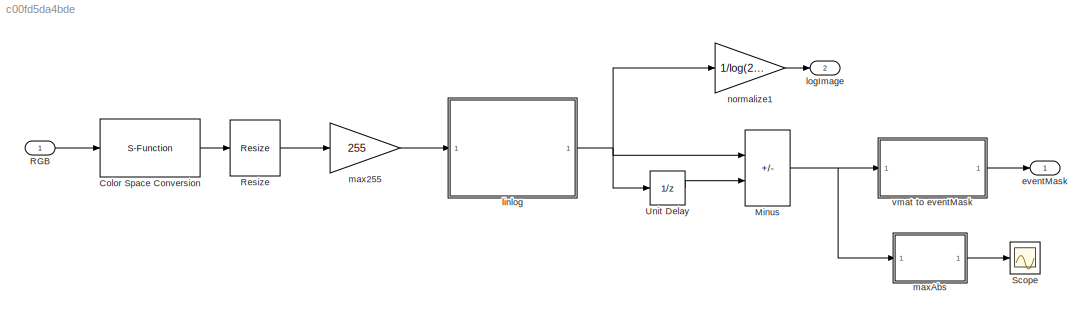
MODEL slx_c00fd5da4bde
KIND model
BLOCK [S-Function] Color Space Conversion
  EnableBusSupport = off
  FunctionName = svipcolorconv
  Parameters = conversionActive, wp, rec, sys, imagePorts, conversion
  Ports = [1, 1]
  SFcnIsStateOwnerBlock = off
  SFunctionDeploymentMode = off
BLOCK [Sum] Minus
  IconShape = rectangular
  Inputs = +-
  Ports = [2, 1]
BLOCK [Inport] RGB
  PortDimensions = [imageHeight,imageWidth,3]
BLOCK [Reference] Resize  REF=visiongeotforms/Resize
  Ports = [1, 1]
  SourceBlock = visiongeotforms/Resize
  SourceProductBaseCode = VP
  SourceType = Resize
BLOCK [Scope] Scope
  Floating = off
  NumInputPorts = 1
  Ports = [1]
  ScopeSpecificationString = Simulink.scopes.TimeScopeBlockCfg('CurrentConfiguration', extmgr.ConfigurationSet(extmgr.Configuration('Core','General UI',true),extmgr.Configuration('Core','Source UI',true),extmgr.Configuration('Sources','WiredSimulink',true),extmgr.Configuration('Visuals','Time Domain',true,'SerializedDisplays',{struct('MinYLimReal','-0.6864','MaxYLimReal','6.17761','YLabelReal','','MinYLimMag','0.00000','MaxYL...<+1356ch>
BLOCK [UnitDelay] Unit Delay
  HasFrameUpgradeWarning = on
  SampleTime = -1
BLOCK [Outport] eventMask
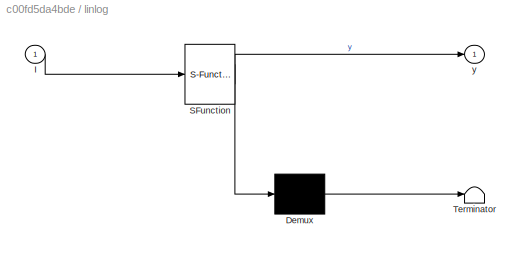
BLOCK [SubSystem] linlog
  ErrorFcn = Stateflow.Translate.translate
  PermitHierarchicalResolution = ExplicitOnly
  Ports = [1, 1]
  RequestExecContextInheritance = off
  SFBlockType = MATLAB Function
  TreatAsAtomicUnit = on
BLOCK [Demux] linlog/ Demux 
  Outputs = 1
  Ports = [1, 1]
BLOCK [S-Function] linlog/ SFunction 
  EnableBusSupport = on
  FunctionName = sf_sfun
  Parameters = threshold
  PortCounts = [1 2]
  Ports = [1, 2]
  SFcnIsStateOwnerBlock = off
  SFunctionDeploymentMode = off
  Tag = Stateflow S-Function 2
BLOCK [Terminator] linlog/ Terminator 
BLOCK [Inport] linlog/I
BLOCK [Outport] linlog/y
BLOCK [Outport] logImage
  Port = 2
BLOCK [Gain] max255
  Gain = 255
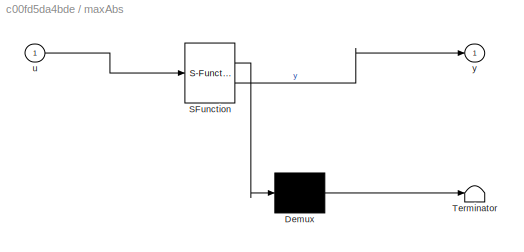
BLOCK [SubSystem] maxAbs
  ErrorFcn = Stateflow.Translate.translate
  PermitHierarchicalResolution = ExplicitOnly
  Ports = [1, 1]
  RequestExecContextInheritance = off
  SFBlockType = MATLAB Function
  TreatAsAtomicUnit = on
BLOCK [Demux] maxAbs/ Demux 
  Outputs = 1
  Ports = [1, 1]
BLOCK [S-Function] maxAbs/ SFunction 
  EnableBusSupport = on
  FunctionName = sf_sfun
  PortCounts = [1 2]
  Ports = [1, 2]
  SFcnIsStateOwnerBlock = off
  SFunctionDeploymentMode = off
  Tag = Stateflow S-Function 1
BLOCK [Terminator] maxAbs/ Terminator 
BLOCK [Inport] maxAbs/u
BLOCK [Outport] maxAbs/y
BLOCK [Gain] normalize1
  Gain = 1/log(255)
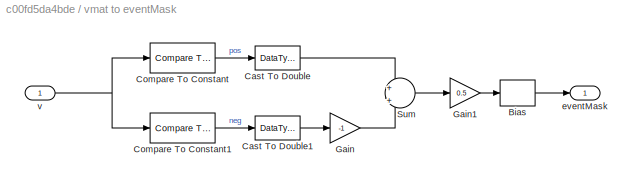
BLOCK [SubSystem] vmat to eventMask
  Ports = [1, 1]
  RequestExecContextInheritance = off
BLOCK [Bias] vmat to eventMask/Bias
  Bias = 0.5
  SaturateOnIntegerOverflow = off
BLOCK [DataTypeConversion] vmat to eventMask/Cast To Double
  OutDataTypeStr = double
  RndMeth = Floor
  SaturateOnIntegerOverflow = off
BLOCK [DataTypeConversion] vmat to eventMask/Cast To Double1
  OutDataTypeStr = double
  RndMeth = Floor
  SaturateOnIntegerOverflow = off
BLOCK [Reference] vmat to eventMask/Compare To Constant  REF=simulink/Logic and Bit
Operations/Compare
To Constant
  Ports = [1, 1]
  SourceBlock = simulink/Logic and Bit\nOperations/Compare\nTo Constant
  SourceProductBaseCode = SL
  SourceType = Compare To Constant
BLOCK [Reference] vmat to eventMask/Compare To Constant1  REF=simulink/Logic and Bit
Operations/Compare
To Constant
  Ports = [1, 1]
  SourceBlock = simulink/Logic and Bit\nOperations/Compare\nTo Constant
  SourceProductBaseCode = SL
  SourceType = Compare To Constant
BLOCK [Gain] vmat to eventMask/Gain
  Gain = -1
BLOCK [Gain] vmat to eventMask/Gain1
  Gain = 0.5
BLOCK [Sum] vmat to eventMask/Sum
  Inputs = +|+
  Ports = [2, 1]
BLOCK [Outport] vmat to eventMask/eventMask
BLOCK [Inport] vmat to eventMask/v
LINE Color Space Conversion:1 -> Resize:1
NET Minus:1 -> maxAbs:1, vmat to eventMask:1
LINE RGB:1 -> Color Space Conversion:1
LINE Resize:1 -> max255:1
LINE Unit Delay:1 -> Minus:2
NET linlog:1 -> Minus:1, Unit Delay:1, normalize1:1
LINE max255:1 -> linlog:1
LINE maxAbs:1 -> Scope:1
LINE normalize1:1 -> logImage:1
LINE vmat to eventMask/Bias:1 -> vmat to eventMask/eventMask:1
LINE vmat to eventMask/Cast To Double1:1 -> vmat to eventMask/Gain:1
LINE vmat to eventMask/Cast To Double:1 -> vmat to eventMask/Sum:1
LINE vmat to eventMask/Compare To Constant1:1 -> vmat to eventMask/Cast To Double1:1
LINE vmat to eventMask/Compare To Constant:1 -> vmat to eventMask/Cast To Double:1
LINE vmat to eventMask/Gain1:1 -> vmat to eventMask/Bias:1
LINE vmat to eventMask/Gain:1 -> vmat to eventMask/Sum:2
LINE vmat to eventMask/Sum:1 -> vmat to eventMask/Gain1:1
NET vmat to eventMask/v:1 -> vmat to eventMask/Compare To Constant1:1, vmat to eventMask/Compare To Constant:1
LINE vmat to eventMask:1 -> eventMask:1
note: NET lines group one-source signal fan-out (src -> all destinations, sorted); 1:1 wires keep LINE
CHART linlog states=1 transitions=1
  STATE_LABEL 'eML_blk_kernel()'
  STATE_LABEL 'SCRIPT:\nfunction y = linlogfn(I,threshold) %codegen\n%returns value in range of 0-log(255) -> 0-5.55413\n%taken from "Event-Based Angular Velocity Regression with Spiking Networks"\nf = (1/threshold)*log(threshold);\nmask = I>threshold;\ny=zeros(size(I));\nfor ii=1:numel(I)\n   if mask(ii)\n       y(ii) = log(I(ii));\n   else\n       y(ii) = I(ii)*f;\n   end\nend\nend\n'
CHART maxAbs states=1 transitions=1
  STATE_LABEL 'eML_blk_kernel()'
  STATE_LABEL "SCRIPT:\nfunction y = fcn(u)\ny = max(abs(u),[],'all');\n"
CHART  states=0 transitions=0
CHART  states=0 transitions=0
